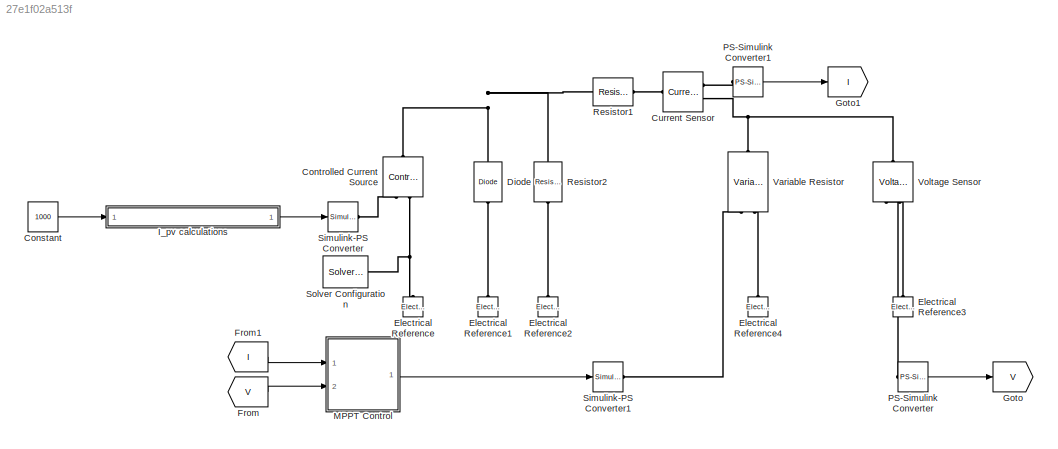
MODEL slx_27e1f02a513f
KIND model
CONFIG AbsTol = auto
CONFIG EnableMultiTasking = off
CONFIG FixedStep = 0.001
CONFIG MaxStep = auto
CONFIG MinStep = auto
CONFIG RelTol = 1e-3
CONFIG SampleTimeConstraint = Unconstrained
CONFIG Solver = FixedStepAuto
CONFIG SolverName = FixedStepAuto
CONFIG StartTime = 0.0
CONFIG StopTime = 10.0
BLOCK [Constant] Constant
  Value = 1000
BLOCK [Reference] Controlled Current Source  REF=fl_lib/Electrical/Electrical Sources/Controlled Current
Source
  Ports = [0, 0, 0, 0, 0, 1, 2]
  SourceBlock = fl_lib/Electrical/Electrical Sources/Controlled Current\nSource
  SourceType = Controlled Current\nSource
BLOCK [Reference] Current Sensor  REF=fl_lib/Electrical/Electrical Sensors/Current Sensor
  Ports = [0, 0, 0, 0, 0, 1, 2]
  SourceBlock = fl_lib/Electrical/Electrical Sensors/Current Sensor
  SourceType = Current Sensor
BLOCK [Reference] Diode  REF=elec_lib/Semiconductor
Devices/Diode
  Ports = [0, 0, 0, 0, 0, 1, 1]
  SourceBlock = elec_lib/Semiconductor\nDevices/Diode
  SourceType = Diode
BLOCK [Reference] Electrical Reference  REF=fl_lib/Electrical/Electrical Elements/Electrical Reference
  Ports = [0, 0, 0, 0, 0, 1]
  SourceBlock = fl_lib/Electrical/Electrical Elements/Electrical Reference
  SourceType = Electrical Reference
BLOCK [Reference] Electrical Reference1  REF=fl_lib/Electrical/Electrical Elements/Electrical Reference
  Ports = [0, 0, 0, 0, 0, 1]
  SourceBlock = fl_lib/Electrical/Electrical Elements/Electrical Reference
  SourceType = Electrical Reference
BLOCK [Reference] Electrical Reference2  REF=fl_lib/Electrical/Electrical Elements/Electrical Reference
  Ports = [0, 0, 0, 0, 0, 1]
  SourceBlock = fl_lib/Electrical/Electrical Elements/Electrical Reference
  SourceType = Electrical Reference
BLOCK [Reference] Electrical Reference3  REF=fl_lib/Electrical/Electrical Elements/Electrical Reference
  Ports = [0, 0, 0, 0, 0, 1]
  SourceBlock = fl_lib/Electrical/Electrical Elements/Electrical Reference
  SourceType = Electrical Reference
BLOCK [Reference] Electrical Reference4  REF=fl_lib/Electrical/Electrical Elements/Electrical Reference
  Ports = [0, 0, 0, 0, 0, 1]
  SourceBlock = fl_lib/Electrical/Electrical Elements/Electrical Reference
  SourceType = Electrical Reference
BLOCK [From] From
  GotoTag = V
BLOCK [From] From1
  GotoTag = I
BLOCK [Goto] Goto
  GotoTag = V
BLOCK [Goto] Goto1
  GotoTag = I
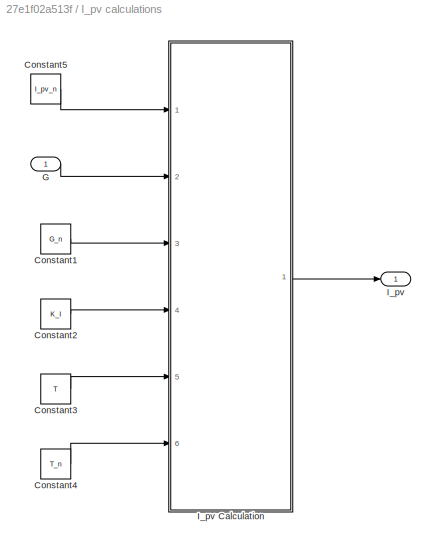
BLOCK [SubSystem] I_pv calculations
  Ports = [1, 1]
  RequestExecContextInheritance = off
  Variant = off
BLOCK [Constant] I_pv calculations/Constant1
  Value = G_n
BLOCK [Constant] I_pv calculations/Constant2
  Value = K_I
BLOCK [Constant] I_pv calculations/Constant3
  Value = T
BLOCK [Constant] I_pv calculations/Constant4
  Value = T_n
BLOCK [Constant] I_pv calculations/Constant5
  Value = I_pv_n
BLOCK [Inport] I_pv calculations/G
  IconDisplay = Port number
BLOCK [Outport] I_pv calculations/I_pv
  IconDisplay = Port number
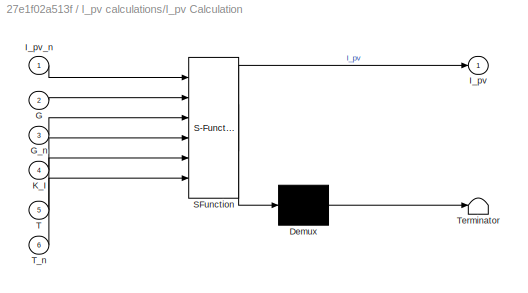
BLOCK [SubSystem] I_pv calculations/I_pv Calculation
  ErrorFcn = Stateflow.Translate.translate
  PermitHierarchicalResolution = ExplicitOnly
  Ports = [6, 1]
  RequestExecContextInheritance = off
  SFBlockType = MATLAB Function
  TreatAsAtomicUnit = on
  Variant = off
BLOCK [Demux] I_pv calculations/I_pv Calculation/ Demux 
  Outputs = 1
  Ports = [1, 1]
BLOCK [S-Function] I_pv calculations/I_pv Calculation/ SFunction 
  EnableBusSupport = on
  FunctionName = sf_sfun
  PortCounts = [6 2]
  Ports = [6, 2]
  SFcnIsStateOwnerBlock = off
  SFunctionDeploymentMode = off
  Tag = Stateflow S-Function GSK_PVModel_04 1
BLOCK [Terminator] I_pv calculations/I_pv Calculation/ Terminator 
BLOCK [Inport] I_pv calculations/I_pv Calculation/G
  IconDisplay = Port number
  Port = 2
BLOCK [Inport] I_pv calculations/I_pv Calculation/G_n
  IconDisplay = Port number
  Port = 3
BLOCK [Outport] I_pv calculations/I_pv Calculation/I_pv
  IconDisplay = Port number
BLOCK [Inport] I_pv calculations/I_pv Calculation/I_pv_n
  IconDisplay = Port number
BLOCK [Inport] I_pv calculations/I_pv Calculation/K_I
  IconDisplay = Port number
  Port = 4
BLOCK [Inport] I_pv calculations/I_pv Calculation/T
  IconDisplay = Port number
  Port = 5
BLOCK [Inport] I_pv calculations/I_pv Calculation/T_n
  IconDisplay = Port number
  Port = 6
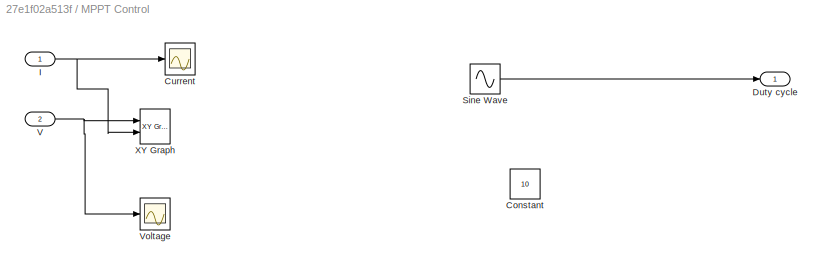
BLOCK [SubSystem] MPPT Control
  Ports = [2, 1]
  RequestExecContextInheritance = off
  Variant = off
BLOCK [Constant] MPPT Control/Constant
  Value = 10
BLOCK [Scope] MPPT Control/Current
  NumInputPorts = 1
  Ports = [1]
  ScopeSpecificationString = Simulink.scopes.TimeScopeBlockCfg('CurrentConfiguration', extmgr.ConfigurationSet(extmgr.Configuration('Core','General UI',true),extmgr.Configuration('Core','Source UI',true),extmgr.Configuration('Sources','WiredSimulink',true,'DataLoggingVariableName','ScopeData1'),extmgr.Configuration('Visuals','Time Domain',true,'SerializedDisplays',{struct('MinYLimReal','-0.77284','MaxYLimReal','7.36542','YLab...<+1413ch>
BLOCK [Outport] MPPT Control/Duty cycle
  IconDisplay = Port number
BLOCK [Inport] MPPT Control/I
  IconDisplay = Port number
BLOCK [Sin] MPPT Control/Sine Wave
  Amplitude = 1000
  Bias = 1000
  Ports = [0, 1]
  SampleTime = 0
BLOCK [Inport] MPPT Control/V
  IconDisplay = Port number
  Port = 2
BLOCK [Scope] MPPT Control/Voltage
  NumInputPorts = 1
  Ports = [1]
  ScopeSpecificationString = Simulink.scopes.TimeScopeBlockCfg('CurrentConfiguration', extmgr.ConfigurationSet(extmgr.Configuration('Core','General UI',true),extmgr.Configuration('Core','Source UI',true),extmgr.Configuration('Sources','WiredSimulink',true),extmgr.Configuration('Visuals','Time Domain',true,'SerializedDisplays',{struct('MinYLimReal','-10.17283','MaxYLimReal','92.20897','YLabelReal','','MinYLimMag','0.00000','Ma...<+1380ch>
BLOCK [Reference] MPPT Control/XY Graph  REF=simulink/Sinks/XY Graph
  Ports = [2]
  SourceBlock = simulink/Sinks/XY Graph
  SourceType = XY scope.
BLOCK [Reference] PS-Simulink Converter  REF=nesl_utility/PS-Simulink
Converter
  Ports = [0, 1, 0, 0, 0, 1]
  SourceBlock = nesl_utility/PS-Simulink\nConverter
  SourceType = PS-Simulink\nConverter
BLOCK [Reference] PS-Simulink Converter1  REF=nesl_utility/PS-Simulink
Converter
  Ports = [0, 1, 0, 0, 0, 1]
  SourceBlock = nesl_utility/PS-Simulink\nConverter
  SourceType = PS-Simulink\nConverter
BLOCK [Reference] Resistor1  REF=fl_lib/Electrical/Electrical Elements/Resistor
  Ports = [0, 0, 0, 0, 0, 1, 1]
  SourceBlock = fl_lib/Electrical/Electrical Elements/Resistor
  SourceType = Resistor
BLOCK [Reference] Resistor2  REF=fl_lib/Electrical/Electrical Elements/Resistor
  Ports = [0, 0, 0, 0, 0, 1, 1]
  SourceBlock = fl_lib/Electrical/Electrical Elements/Resistor
  SourceType = Resistor
BLOCK [Reference] Simulink-PS Converter  REF=nesl_utility/Simulink-PS
Converter
  Ports = [1, 0, 0, 0, 0, 0, 1]
  SourceBlock = nesl_utility/Simulink-PS\nConverter
  SourceType = Simulink-PS\nConverter
BLOCK [Reference] Simulink-PS Converter1  REF=nesl_utility/Simulink-PS
Converter
  Ports = [1, 0, 0, 0, 0, 0, 1]
  SourceBlock = nesl_utility/Simulink-PS\nConverter
  SourceType = Simulink-PS\nConverter
BLOCK [Reference] Solver Configuration  REF=nesl_utility/Solver
Configuration
  Ports = [0, 0, 0, 0, 0, 0, 1]
  SourceBlock = nesl_utility/Solver\nConfiguration
  SourceType = Solver\nConfiguration
BLOCK [Reference] Variable Resistor  REF=fl_lib/Electrical/Electrical Elements/Variable Resistor
  Ports = [0, 0, 0, 0, 0, 2, 1]
  SourceBlock = fl_lib/Electrical/Electrical Elements/Variable Resistor
  SourceType = Variable Resistor
BLOCK [Reference] Voltage Sensor  REF=fl_lib/Electrical/Electrical Sensors/Voltage Sensor
  Ports = [0, 0, 0, 0, 0, 1, 2]
  SourceBlock = fl_lib/Electrical/Electrical Sensors/Voltage Sensor
  SourceType = Voltage Sensor
LINE Constant:1 -> I_pv calculations:1
LINE From1:1 -> MPPT Control:1
LINE From:1 -> MPPT Control:2
LINE I_pv calculations/Constant1:1 -> I_pv calculations/I_pv Calculation:3
LINE I_pv calculations/Constant2:1 -> I_pv calculations/I_pv Calculation:4
LINE I_pv calculations/Constant3:1 -> I_pv calculations/I_pv Calculation:5
LINE I_pv calculations/Constant4:1 -> I_pv calculations/I_pv Calculation:6
LINE I_pv calculations/Constant5:1 -> I_pv calculations/I_pv Calculation:1
LINE I_pv calculations/G:1 -> I_pv calculations/I_pv Calculation:2
LINE I_pv calculations/I_pv Calculation:1 -> I_pv calculations/I_pv:1
LINE I_pv calculations:1 -> Simulink-PS Converter:1
NET MPPT Control/I:1 -> MPPT Control/Current:1, MPPT Control/XY Graph:2
LINE MPPT Control/Sine Wave:1 -> MPPT Control/Duty cycle:1
NET MPPT Control/V:1 -> MPPT Control/Voltage:1, MPPT Control/XY Graph:1
LINE MPPT Control:1 -> Simulink-PS Converter1:1
LINE PS-Simulink Converter1:1 -> Goto1:1
LINE PS-Simulink Converter:1 -> Goto:1
PNET net1: Controlled Current Source:LConn1 -- Diode:LConn1 -- Resistor1:LConn1 -- Resistor2:LConn1
PLINE Controlled Current Source:RConn1 -- Simulink-PS Converter:RConn1
PNET net2: Controlled Current Source:RConn2 -- Electrical Reference:LConn1 -- Solver Configuration:RConn1
PLINE Current Sensor:LConn1 -- Resistor1:RConn1
PLINE Current Sensor:RConn1 -- PS-Simulink Converter1:LConn1
PNET net3: Current Sensor:RConn2 -- Variable Resistor:RConn1 -- Voltage Sensor:LConn1
PLINE Diode:RConn1 -- Electrical Reference1:LConn1
PLINE Electrical Reference2:LConn1 -- Resistor2:RConn1
PLINE Electrical Reference3:LConn1 -- Voltage Sensor:RConn2
PLINE Electrical Reference4:LConn1 -- Variable Resistor:LConn2
PLINE PS-Simulink Converter:LConn1 -- Voltage Sensor:RConn1
PLINE Simulink-PS Converter1:RConn1 -- Variable Resistor:LConn1
note: NET lines group one-source signal fan-out (src -> all destinations, sorted); 1:1 wires keep LINE; PNET lines group multi-terminal physical nets as a canonical sorted terminal list (undirected conserving connections); 2-terminal nets keep the pairwise PLINE form
CHART I_pv calculations/I_pv Calculation states=1 transitions=1
  STATE_LABEL 'eML_blk_kernel()'
  STATE_LABEL 'SCRIPT:\nfunction I_pv = fcn(I_pv_n, G, G_n, K_I, T, T_n )\n%#codegen\nDelta_T = (T - T_n);\nI_pv = (I_pv_n + K_I*Delta_T)*G/G_n;'
